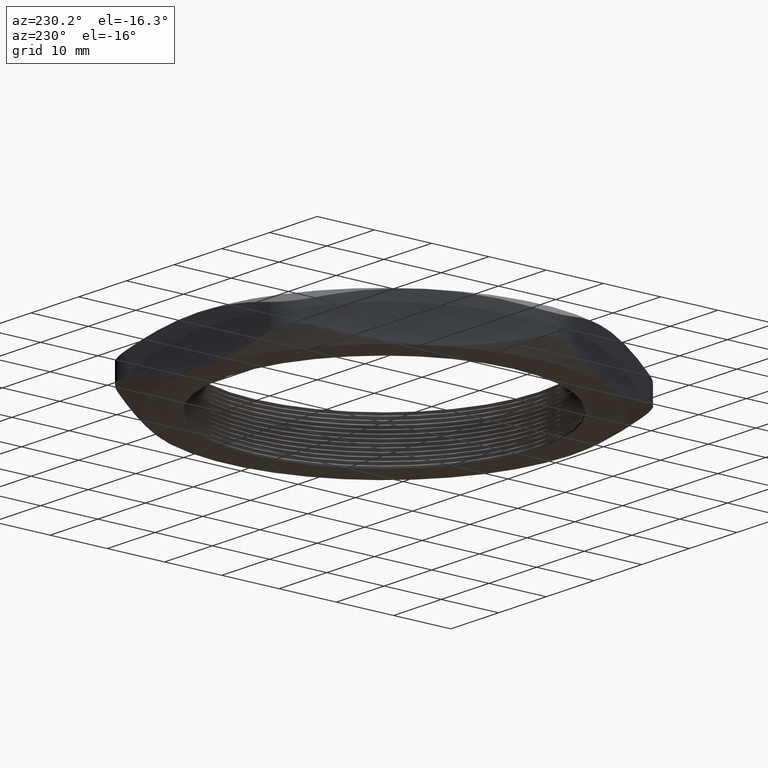
[diagram: clean part render]
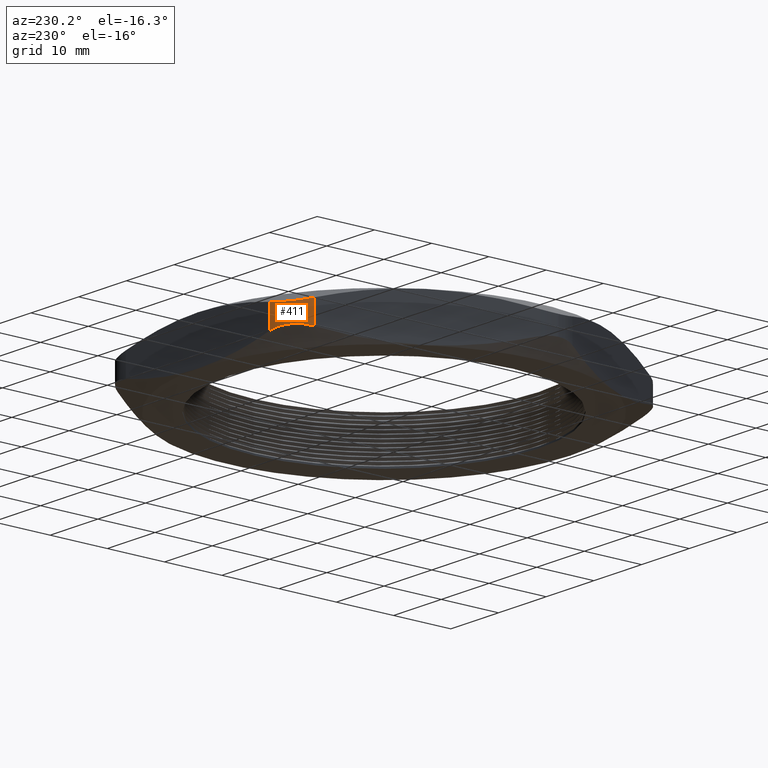
[diagram: same view with one face highlighted and labeled with its STEP entity id]
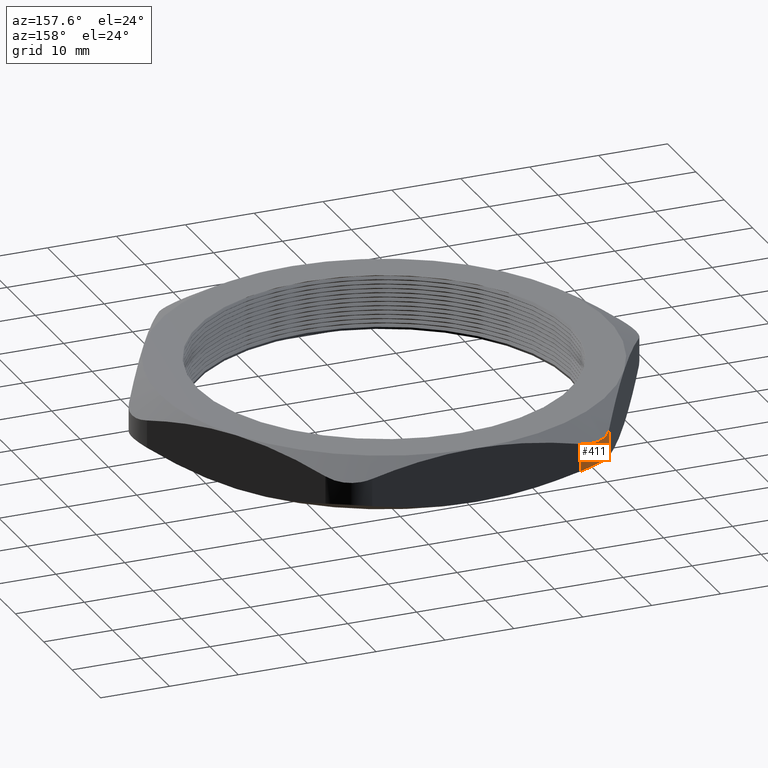
[diagram: same view with one face highlighted and labeled with its STEP entity id]
A machine part, auxiliary view. The second image highlights one B-rep face of the part: STEP entity #411.
A second angle (auxiliary view) of the same face is appended — the face is thin or edge-on in the first view.
In plain terms, the highlighted cylindrical surface (partial cylindrical patch) has radius 6.35 mm, axis along (0, 0, -1).
Its self-contained STEP definition (entity closure, byte-faithful):
#377 = EDGE_CURVE ( 'NONE', #797, #890, #1672, .T. ) ;
#411 = ADVANCED_FACE ( 'NONE', ( #1791 ), #1790, .T. ) ;
#412 = EDGE_LOOP ( 'NONE', ( #413, #414, #415, #416 ) ) ;
#413 = ORIENTED_EDGE ( 'NONE', *, *, #922, .F. ) ;
#414 = ORIENTED_EDGE ( 'NONE', *, *, #928, .F. ) ;
#415 = ORIENTED_EDGE ( 'NONE', *, *, #377, .F. ) ;
#416 = ORIENTED_EDGE ( 'NONE', *, *, #834, .F. ) ;
#797 = VERTEX_POINT ( 'NONE', #2471 ) ;
#832 = VERTEX_POINT ( 'NONE', #2554 ) ;
#834 = EDGE_CURVE ( 'NONE', #832, #797, #2598, .T. ) ;
#890 = VERTEX_POINT ( 'NONE', #2726 ) ;
#922 = EDGE_CURVE ( 'NONE', #938, #832, #2774, .T. ) ;
#928 = EDGE_CURVE ( 'NONE', #890, #938, #2820, .T. ) ;
#938 = VERTEX_POINT ( 'NONE', #2792 ) ;
#1672 = B_SPLINE_CURVE_WITH_KNOTS ( 'NONE', 3,
 ( #1677, #1676, #1675, #1731, #1730, #1729, #1728, #1727, #1726, #1725, #1724, #1723, #1722, #1721 ),
 .UNSPECIFIED., .F., .F.,
 ( 4, 2, 2, 2, 2, 2, 4 ),
 ( 0.0000000000000000000, 0.001669840121051558400, 0.002504760181577333900, 0.003339680242103109100, 0.004174600302628884300, 0.005009520363154659900, 0.006679360484206215600 ),
 .UNSPECIFIED. ) ;
#1675 = CARTESIAN_POINT ( 'NONE',  ( -0.7873150024386634800, 1.190833143950531300, 0.08510571054412695300 ) ) ;
#1676 = CARTESIAN_POINT ( 'NONE',  ( -0.8003850585843891300, 1.173692412912844800, 0.08111094574016293500 ) ) ;
#1677 = CARTESIAN_POINT ( 'NONE',  ( -0.8111771282114240700, 1.155000000000000000, 0.07586042469470387400 ) ) ;
#1721 = CARTESIAN_POINT ( 'NONE',  ( -0.5946707772653164700, 1.280000000000000000, 0.07586042469470433100 ) ) ;
#1722 = CARTESIAN_POINT ( 'NONE',  ( -0.6162603030698004000, 1.280000000000000900, 0.08111225606326649700 ) ) ;
#1723 = CARTESIAN_POINT ( 'NONE',  ( -0.6380932363901108400, 1.277159335061435400, 0.08517766554010086600 ) ) ;
#1724 = CARTESIAN_POINT ( 'NONE',  ( -0.6696218917418433900, 1.268748072567801500, 0.08924329747529259600 ) ) ;
#1725 = CARTESIAN_POINT ( 'NONE',  ( -0.6799767698733586400, 1.265254203478354900, 0.09027174263999723800 ) ) ;
#1726 = CARTESIAN_POINT ( 'NONE',  ( -0.7003631279386131100, 1.256827643020491200, 0.09165484778064031400 ) ) ;
#1727 = CARTESIAN_POINT ( 'NONE',  ( -0.7103484313641400500, 1.251898737729815000, 0.09200007377823474200 ) ) ;
#1728 = CARTESIAN_POINT ( 'NONE',  ( -0.7293424250066890000, 1.240912106713948800, 0.09199162737741077600 ) ) ;
#1729 = CARTESIAN_POINT ( 'NONE',  ( -0.7384344114442046300, 1.234822322615551000, 0.09164457365785265400 ) ) ;
#1730 = CARTESIAN_POINT ( 'NONE',  ( -0.7558103521459600400, 1.221452876085044700, 0.09026396296918566500 ) ) ;
#1731 = CARTESIAN_POINT ( 'NONE',  ( -0.7641552604195126500, 1.214105362201560100, 0.08921685669050807800 ) ) ;
#1786 = DIRECTION ( 'NONE',  ( -1.000000000000000000, 0.0000000000000000000, 0.0000000000000000000 ) ) ;
#1787 = DIRECTION ( 'NONE',  ( 0.0000000000000000000, 0.0000000000000000000, -1.000000000000000000 ) ) ;
#1788 = AXIS2_PLACEMENT_3D ( 'NONE', #1796, #1787, #1786 ) ;
#1790 = CYLINDRICAL_SURFACE ( 'NONE', #1788, 0.2500000000000000000 ) ;
#1791 = FACE_OUTER_BOUND ( 'NONE', #412, .T. ) ;
#1796 = CARTESIAN_POINT ( 'NONE',  ( -0.5946707772653143700, 1.030000000000000000, 0.3100000000000000000 ) ) ;
#2471 = CARTESIAN_POINT ( 'NONE',  ( -0.8111771282114240700, 1.155000000000000000, 0.07586042469470387400 ) ) ;
#2554 = CARTESIAN_POINT ( 'NONE',  ( -0.8111771282114240700, 1.155000000000000000, 0.2341395753052960500 ) ) ;
#2595 = DIRECTION ( 'NONE',  ( 0.0000000000000000000, 0.0000000000000000000, -1.000000000000000000 ) ) ;
#2596 = VECTOR ( 'NONE', #2595, 39.37007874015748100 ) ;
#2597 = CARTESIAN_POINT ( 'NONE',  ( -0.8111771282114240700, 1.154999999999999800, 0.3100000000000000000 ) ) ;
#2598 = LINE ( 'NONE', #2597, #2596 ) ;
#2726 = CARTESIAN_POINT ( 'NONE',  ( -0.5946707772653164700, 1.280000000000000000, 0.07586042469470433100 ) ) ;
#2758 = CARTESIAN_POINT ( 'NONE',  ( -0.8111771282114240700, 1.155000000000000000, 0.2341395753052960500 ) ) ;
#2759 = CARTESIAN_POINT ( 'NONE',  ( -0.8003823653091817200, 1.173697077802344300, 0.2288877439367337500 ) ) ;
#2760 = CARTESIAN_POINT ( 'NONE',  ( -0.7870058106485908800, 1.191184620227581100, 0.2248223344598994600 ) ) ;
#2761 = CARTESIAN_POINT ( 'NONE',  ( -0.7639571159753381100, 1.214283605462529200, 0.2207567025247076700 ) ) ;
#2762 = CARTESIAN_POINT ( 'NONE',  ( -0.7557538975206226100, 1.221504258432790000, 0.2197282573600031500 ) ) ;
#2763 = CARTESIAN_POINT ( 'NONE',  ( -0.7382631030649600100, 1.234946082179014400, 0.2183451522193599300 ) ) ;
#2764 = CARTESIAN_POINT ( 'NONE',  ( -0.7290018941576241800, 1.241129155964679100, 0.2179999262217654800 ) ) ;
#2765 = CARTESIAN_POINT ( 'NONE',  ( -0.7099901957746033200, 1.252085121470513100, 0.2180083726225893200 ) ) ;
#2766 = CARTESIAN_POINT ( 'NONE',  ( -0.7001702948230701400, 1.256914120647067100, 0.2183554263421472500 ) ) ;
#2767 = CARTESIAN_POINT ( 'NONE',  ( -0.6799040441422362600, 1.265277403444185800, 0.2197360370308141500 ) ) ;
#2768 = CARTESIAN_POINT ( 'NONE',  ( -0.6693684563277041400, 1.268830549059590600, 0.2207831433094917000 ) ) ;
#2769 = CARTESIAN_POINT ( 'NONE',  ( -0.6376342531103215100, 1.277251364867755500, 0.2248942894558727000 ) ) ;
#2770 = CARTESIAN_POINT ( 'NONE',  ( -0.6162549165193843500, 1.279999999999999800, 0.2288890542598321400 ) ) ;
#2771 = CARTESIAN_POINT ( 'NONE',  ( -0.5946707772653161400, 1.280000000000000000, 0.2341395753052956400 ) ) ;
#2774 = B_SPLINE_CURVE_WITH_KNOTS ( 'NONE', 3,
 ( #2771, #2770, #2769, #2768, #2767, #2766, #2765, #2764, #2763, #2762, #2761, #2760, #2759, #2758 ),
 .UNSPECIFIED., .F., .F.,
 ( 4, 2, 2, 2, 2, 2, 4 ),
 ( 2.562756726049955200E-017, 0.001669840121051589200, 0.002504760181577368600, 0.003339680242103147700, 0.004174600302628927700, 0.005009520363154706800, 0.006679360484206265900 ),
 .UNSPECIFIED. ) ;
#2792 = CARTESIAN_POINT ( 'NONE',  ( -0.5946707772653161400, 1.280000000000000000, 0.2341395753052956400 ) ) ;
#2809 = DIRECTION ( 'NONE',  ( 0.0000000000000000000, 0.0000000000000000000, 1.000000000000000000 ) ) ;
#2810 = VECTOR ( 'NONE', #2809, 39.37007874015748100 ) ;
#2819 = CARTESIAN_POINT ( 'NONE',  ( -0.5946707772653143700, 1.280000000000000000, 0.3100000000000000000 ) ) ;
#2820 = LINE ( 'NONE', #2819, #2810 ) ;